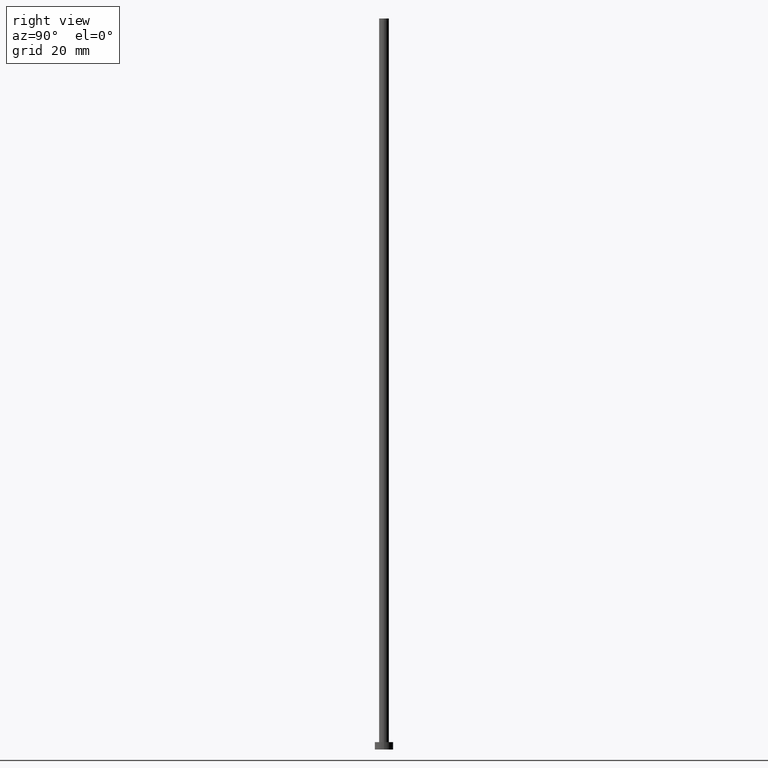
[diagram: clean part render]
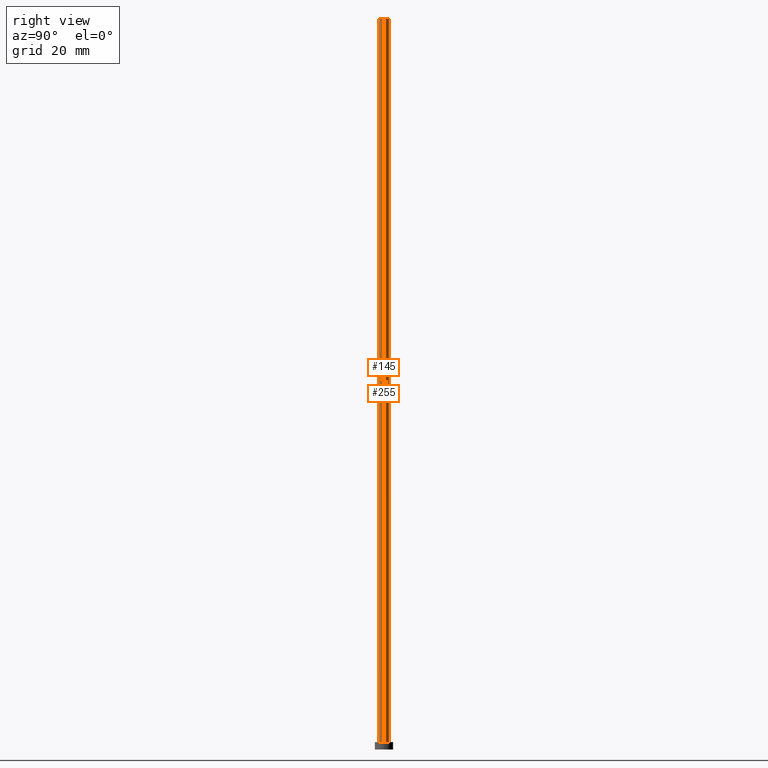
[diagram: same view with one multi-face feature highlighted, each face labeled with its STEP entity id]
A machine part, right view. The highlighted faces form ONE feature: a constant-radius fillet chain: 2 tangent blend faces with common blend radius 1.35 mm. The faces share edges in the B-rep.
Their STEP definitions:
[1] entity #145 (Cylinder):
#6 = CARTESIAN_POINT ( 'NONE',  ( -1.350000000000000089, 0.000000000000000000, 2.000000000000000000 ) ) ;
#7 = VERTEX_POINT ( 'NONE', #171 ) ;
#17 = FACE_OUTER_BOUND ( 'NONE', #248, .T. ) ;
#20 = CIRCLE ( 'NONE', #166, 1.350000000000000089 ) ;
#25 = DIRECTION ( 'NONE',  ( 0.000000000000000000, 0.000000000000000000, 1.000000000000000000 ) ) ;
#37 = CARTESIAN_POINT ( 'NONE',  ( -1.350000000000000089, 0.000000000000000000, 200.0000000000000000 ) ) ;
#40 = DIRECTION ( 'NONE',  ( -1.000000000000000000, 0.000000000000000000, 0.000000000000000000 ) ) ;
#46 = CIRCLE ( 'NONE', #123, 1.350000000000000089 ) ;
#55 = CARTESIAN_POINT ( 'NONE',  ( 0.000000000000000000, 0.000000000000000000, 2.000000000000000000 ) ) ;
#56 = ORIENTED_EDGE ( 'NONE', *, *, #241, .T. ) ;
#60 = CARTESIAN_POINT ( 'NONE',  ( 0.000000000000000000, 0.000000000000000000, 200.0000000000000000 ) ) ;
#76 = AXIS2_PLACEMENT_3D ( 'NONE', #60, #176, #40 ) ;
#94 = CARTESIAN_POINT ( 'NONE',  ( 1.350000000000000089, 1.653273178848926867E-16, 2.000000000000000000 ) ) ;
#98 = EDGE_CURVE ( 'NONE', #7, #131, #46, .T. ) ;
#109 = VERTEX_POINT ( 'NONE', #94 ) ;
#117 = LINE ( 'NONE', #37, #239 ) ;
#123 = AXIS2_PLACEMENT_3D ( 'NONE', #205, #25, #197 ) ;
#131 = VERTEX_POINT ( 'NONE', #138 ) ;
#132 = DIRECTION ( 'NONE',  ( 1.000000000000000000, 0.000000000000000000, 0.000000000000000000 ) ) ;
#138 = CARTESIAN_POINT ( 'NONE',  ( 1.350000000000000089, 1.653273178848926867E-16, 200.0000000000000000 ) ) ;
#142 = CARTESIAN_POINT ( 'NONE',  ( 1.350000000000000089, 1.653273178848926867E-16, 200.0000000000000000 ) ) ;
#145 = ADVANCED_FACE ( 'NONE', ( #17 ), #181, .T. ) ;
#154 = ORIENTED_EDGE ( 'NONE', *, *, #199, .T. ) ;
#166 = AXIS2_PLACEMENT_3D ( 'NONE', #55, #249, #132 ) ;
#171 = CARTESIAN_POINT ( 'NONE',  ( -1.350000000000000089, 0.000000000000000000, 200.0000000000000000 ) ) ;
#173 = ORIENTED_EDGE ( 'NONE', *, *, #177, .F. ) ;
#176 = DIRECTION ( 'NONE',  ( -0.000000000000000000, -0.000000000000000000, -1.000000000000000000 ) ) ;
#177 = EDGE_CURVE ( 'NONE', #131, #109, #214, .T. ) ;
#180 = DIRECTION ( 'NONE',  ( -0.000000000000000000, -0.000000000000000000, -1.000000000000000000 ) ) ;
#181 = CYLINDRICAL_SURFACE ( 'NONE', #76, 1.350000000000000089 ) ;
#183 = VECTOR ( 'NONE', #180, 1000.000000000000000 ) ;
#192 = ORIENTED_EDGE ( 'NONE', *, *, #98, .F. ) ;
#197 = DIRECTION ( 'NONE',  ( 1.000000000000000000, 0.000000000000000000, 0.000000000000000000 ) ) ;
#198 = DIRECTION ( 'NONE',  ( -0.000000000000000000, -0.000000000000000000, -1.000000000000000000 ) ) ;
#199 = EDGE_CURVE ( 'NONE', #7, #229, #117, .T. ) ;
#205 = CARTESIAN_POINT ( 'NONE',  ( 0.000000000000000000, 0.000000000000000000, 200.0000000000000000 ) ) ;
#214 = LINE ( 'NONE', #142, #183 ) ;
#229 = VERTEX_POINT ( 'NONE', #6 ) ;
#239 = VECTOR ( 'NONE', #198, 1000.000000000000000 ) ;
#241 = EDGE_CURVE ( 'NONE', #229, #109, #20, .T. ) ;
#248 = EDGE_LOOP ( 'NONE', ( #173, #192, #154, #56 ) ) ;
#249 = DIRECTION ( 'NONE',  ( 0.000000000000000000, 0.000000000000000000, 1.000000000000000000 ) ) ;
[2] entity #255 (Cylinder):
#6 = CARTESIAN_POINT ( 'NONE',  ( -1.350000000000000089, 0.000000000000000000, 2.000000000000000000 ) ) ;
#7 = VERTEX_POINT ( 'NONE', #171 ) ;
#10 = DIRECTION ( 'NONE',  ( 1.000000000000000000, 0.000000000000000000, 0.000000000000000000 ) ) ;
#30 = DIRECTION ( 'NONE',  ( 1.000000000000000000, 0.000000000000000000, 0.000000000000000000 ) ) ;
#32 = CYLINDRICAL_SURFACE ( 'NONE', #219, 1.350000000000000089 ) ;
#37 = CARTESIAN_POINT ( 'NONE',  ( -1.350000000000000089, 0.000000000000000000, 200.0000000000000000 ) ) ;
#42 = AXIS2_PLACEMENT_3D ( 'NONE', #152, #251, #30 ) ;
#48 = EDGE_CURVE ( 'NONE', #131, #7, #159, .T. ) ;
#88 = DIRECTION ( 'NONE',  ( -1.000000000000000000, 0.000000000000000000, 0.000000000000000000 ) ) ;
#89 = ORIENTED_EDGE ( 'NONE', *, *, #199, .F. ) ;
#94 = CARTESIAN_POINT ( 'NONE',  ( 1.350000000000000089, 1.653273178848926867E-16, 2.000000000000000000 ) ) ;
#109 = VERTEX_POINT ( 'NONE', #94 ) ;
#110 = ORIENTED_EDGE ( 'NONE', *, *, #177, .T. ) ;
#116 = ORIENTED_EDGE ( 'NONE', *, *, #237, .T. ) ;
#117 = LINE ( 'NONE', #37, #239 ) ;
#128 = DIRECTION ( 'NONE',  ( 0.000000000000000000, 0.000000000000000000, 1.000000000000000000 ) ) ;
#131 = VERTEX_POINT ( 'NONE', #138 ) ;
#135 = ORIENTED_EDGE ( 'NONE', *, *, #48, .F. ) ;
#137 = FACE_OUTER_BOUND ( 'NONE', #194, .T. ) ;
#138 = CARTESIAN_POINT ( 'NONE',  ( 1.350000000000000089, 1.653273178848926867E-16, 200.0000000000000000 ) ) ;
#142 = CARTESIAN_POINT ( 'NONE',  ( 1.350000000000000089, 1.653273178848926867E-16, 200.0000000000000000 ) ) ;
#150 = CARTESIAN_POINT ( 'NONE',  ( 0.000000000000000000, 0.000000000000000000, 2.000000000000000000 ) ) ;
#152 = CARTESIAN_POINT ( 'NONE',  ( 0.000000000000000000, 0.000000000000000000, 200.0000000000000000 ) ) ;
#153 = CARTESIAN_POINT ( 'NONE',  ( 0.000000000000000000, 0.000000000000000000, 200.0000000000000000 ) ) ;
#159 = CIRCLE ( 'NONE', #42, 1.350000000000000089 ) ;
#171 = CARTESIAN_POINT ( 'NONE',  ( -1.350000000000000089, 0.000000000000000000, 200.0000000000000000 ) ) ;
#177 = EDGE_CURVE ( 'NONE', #131, #109, #214, .T. ) ;
#180 = DIRECTION ( 'NONE',  ( -0.000000000000000000, -0.000000000000000000, -1.000000000000000000 ) ) ;
#183 = VECTOR ( 'NONE', #180, 1000.000000000000000 ) ;
#194 = EDGE_LOOP ( 'NONE', ( #135, #110, #116, #89 ) ) ;
#198 = DIRECTION ( 'NONE',  ( -0.000000000000000000, -0.000000000000000000, -1.000000000000000000 ) ) ;
#199 = EDGE_CURVE ( 'NONE', #7, #229, #117, .T. ) ;
#208 = DIRECTION ( 'NONE',  ( -0.000000000000000000, -0.000000000000000000, -1.000000000000000000 ) ) ;
#213 = CIRCLE ( 'NONE', #244, 1.350000000000000089 ) ;
#214 = LINE ( 'NONE', #142, #183 ) ;
#219 = AXIS2_PLACEMENT_3D ( 'NONE', #153, #208, #88 ) ;
#229 = VERTEX_POINT ( 'NONE', #6 ) ;
#237 = EDGE_CURVE ( 'NONE', #109, #229, #213, .T. ) ;
#239 = VECTOR ( 'NONE', #198, 1000.000000000000000 ) ;
#244 = AXIS2_PLACEMENT_3D ( 'NONE', #150, #128, #10 ) ;
#251 = DIRECTION ( 'NONE',  ( 0.000000000000000000, 0.000000000000000000, 1.000000000000000000 ) ) ;
#255 = ADVANCED_FACE ( 'NONE', ( #137 ), #32, .T. ) ;